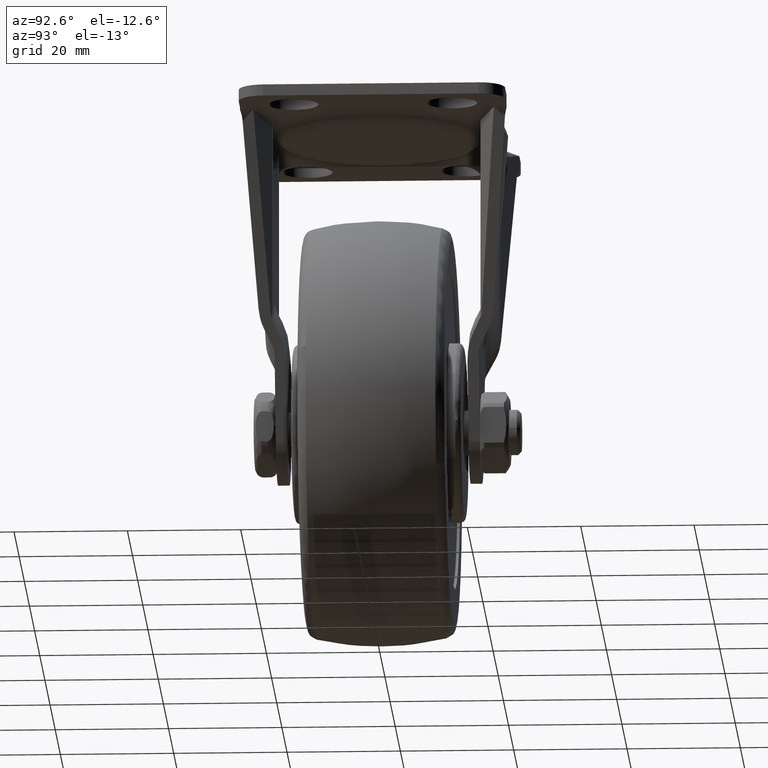
[diagram: clean part render]
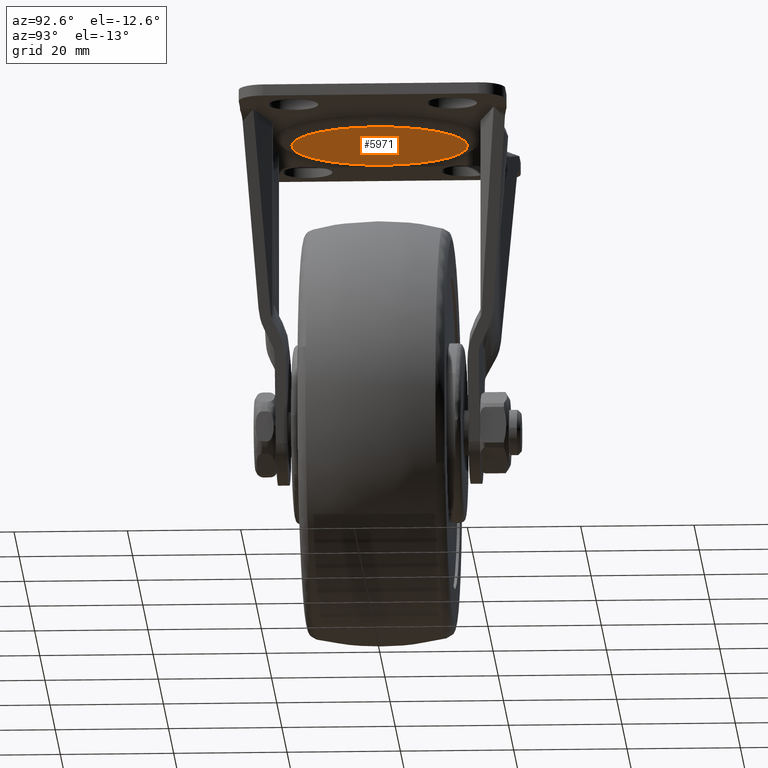
[diagram: same view with one face highlighted and labeled with its STEP entity id]
A machine part, auxiliary view. The second image highlights one B-rep face of the part: STEP entity #5971.
In plain terms, the highlighted face is a freeform B-spline surface patch.
Its self-contained STEP definition (entity closure, byte-faithful):
#4018=CARTESIAN_POINT('',(8.378581035810658,13.040298306119871,-3.499999999999999));
#4019=VERTEX_POINT('',#4018);
#4020=CARTESIAN_POINT('',(15.500000000000000,-5.034124E-016,-3.500000000000000));
#4021=VERTEX_POINT('',#4020);
#4022=CARTESIAN_POINT('',(8.378581035810658,13.040298306119873,-3.499999999999999));
#4023=CARTESIAN_POINT('',(15.500000000000004,8.464683199353228,-3.500000000000000));
#4024=CARTESIAN_POINT('',(15.500000000000000,-5.034124E-016,-3.500000000000000));
#4032=(BOUNDED_CURVE()B_SPLINE_CURVE(2,(#4022,#4023,#4024),.UNSPECIFIED.,.F.,.U.)B_SPLINE_CURVE_WITH_KNOTS((3,3),(0.342539826047680,0.500000000000000),.UNSPECIFIED.)CURVE()GEOMETRIC_REPRESENTATION_ITEM()RATIONAL_B_SPLINE_CURVE((0.863428933514215,0.815523931264715,1.0))REPRESENTATION_ITEM(''));
#4033=EDGE_CURVE('',#4019,#4021,#4032,.T.);
#4097=CARTESIAN_POINT('',(-12.539763414437880,9.110671411851074,-3.499999999999999));
#4098=VERTEX_POINT('',#4097);
#4112=CARTESIAN_POINT('',(-15.500000000000000,-5.034124E-016,-3.500000000000000));
#4113=VERTEX_POINT('',#4112);
#4114=CARTESIAN_POINT('',(-15.500000000000000,-5.034124E-016,-3.500000000000000));
#4115=CARTESIAN_POINT('',(-15.500000000000004,5.036255291731909,-3.500000000000001));
#4116=CARTESIAN_POINT('',(-12.539763414437877,9.110671411851074,-3.500000000000000));
#4124=(BOUNDED_CURVE()B_SPLINE_CURVE(2,(#4114,#4115,#4116),.UNSPECIFIED.,.F.,.U.)B_SPLINE_CURVE_WITH_KNOTS((3,3),(0.0,0.101249659002421),.UNSPECIFIED.)CURVE()GEOMETRIC_REPRESENTATION_ITEM()RATIONAL_B_SPLINE_CURVE((1.0,0.881378645884066,0.858840265005282))REPRESENTATION_ITEM(''));
#4125=EDGE_CURVE('',#4113,#4098,#4124,.T.);
#4127=CARTESIAN_POINT('',(15.500000000000000,-5.034124E-016,-3.500000000000000));
#4128=CARTESIAN_POINT('',(15.500000000000004,-15.500000000000004,-3.499999999999999));
#4129=CARTESIAN_POINT('',(0.0,-15.500000000000000,-3.500000000000000));
#4130=CARTESIAN_POINT('',(-15.500000000000004,-15.500000000000004,-3.499999999999999));
#4131=CARTESIAN_POINT('',(-15.500000000000000,-5.034124E-016,-3.500000000000000));
#4139=(BOUNDED_CURVE()B_SPLINE_CURVE(2,(#4127,#4128,#4129,#4130,#4131),.UNSPECIFIED.,.F.,.U.)B_SPLINE_CURVE_WITH_KNOTS((3,2,3),(0.500000000000000,0.750000000000000,1.0),.UNSPECIFIED.)CURVE()GEOMETRIC_REPRESENTATION_ITEM()RATIONAL_B_SPLINE_CURVE((1.0,0.707106781186548,1.0,0.707106781186548,1.0))REPRESENTATION_ITEM(''));
#4140=EDGE_CURVE('',#4021,#4113,#4139,.T.);
#4162=CARTESIAN_POINT('',(-12.539763414437877,9.110671411851074,-3.500000000000000));
#4163=CARTESIAN_POINT('',(-7.897644467024808,15.500000000000002,-3.500000000000000));
#4164=CARTESIAN_POINT('',(0.0,15.500000000000000,-3.500000000000000));
#4165=CARTESIAN_POINT('',(4.550338074695177,15.499999999999998,-3.500000000000000));
#4166=CARTESIAN_POINT('',(8.378581035810658,13.040298306119873,-3.499999999999999));
#4174=(BOUNDED_CURVE()B_SPLINE_CURVE(2,(#4162,#4163,#4164,#4165,#4166),.UNSPECIFIED.,.F.,.U.)B_SPLINE_CURVE_WITH_KNOTS((3,2,3),(0.101249659002421,0.250000000000000,0.342539826047680),.UNSPECIFIED.)CURVE()GEOMETRIC_REPRESENTATION_ITEM()RATIONAL_B_SPLINE_CURVE((0.858840265005282,0.825728135302482,1.0,0.891582849921832,0.863428933514215))REPRESENTATION_ITEM(''));
#4175=EDGE_CURVE('',#4098,#4019,#4174,.T.);
#5960=CARTESIAN_POINT('',(17.048449939915990,-17.048349319708379,-3.500000000000000));
#5961=CARTESIAN_POINT('',(-17.048450771400780,-17.048349319708379,-3.500000000000000));
#5962=CARTESIAN_POINT('',(17.048449939915990,17.046335732024762,-3.500000000000000));
#5963=CARTESIAN_POINT('',(-17.048450771400780,17.046335732024762,-3.500000000000000));
#5964=B_SPLINE_SURFACE_WITH_KNOTS('',1,1,((#5960,#5962),(#5961,#5963)),.UNSPECIFIED.,.F.,.F.,.U.,(2,2),(2,2),(0.0,34.096900711316763),(0.0,34.094685051733137),.UNSPECIFIED.);
#5965=ORIENTED_EDGE('',*,*,#4125,.T.);
#5966=ORIENTED_EDGE('',*,*,#4175,.T.);
#5967=ORIENTED_EDGE('',*,*,#4033,.T.);
#5968=ORIENTED_EDGE('',*,*,#4140,.T.);
#5969=EDGE_LOOP('',(#5965,#5966,#5967,#5968));
#5970=FACE_OUTER_BOUND('',#5969,.T.);
#5971=ADVANCED_FACE('',(#5970),#5964,.T.);